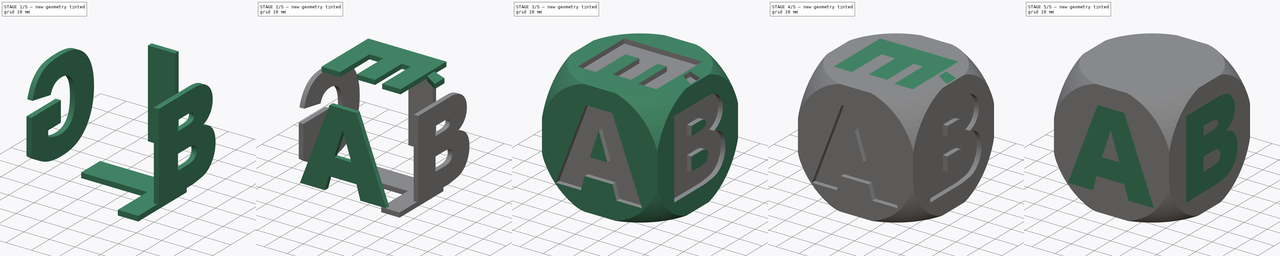
[diagram: build sequence overview — one tinted view per stage of 5, left to right]
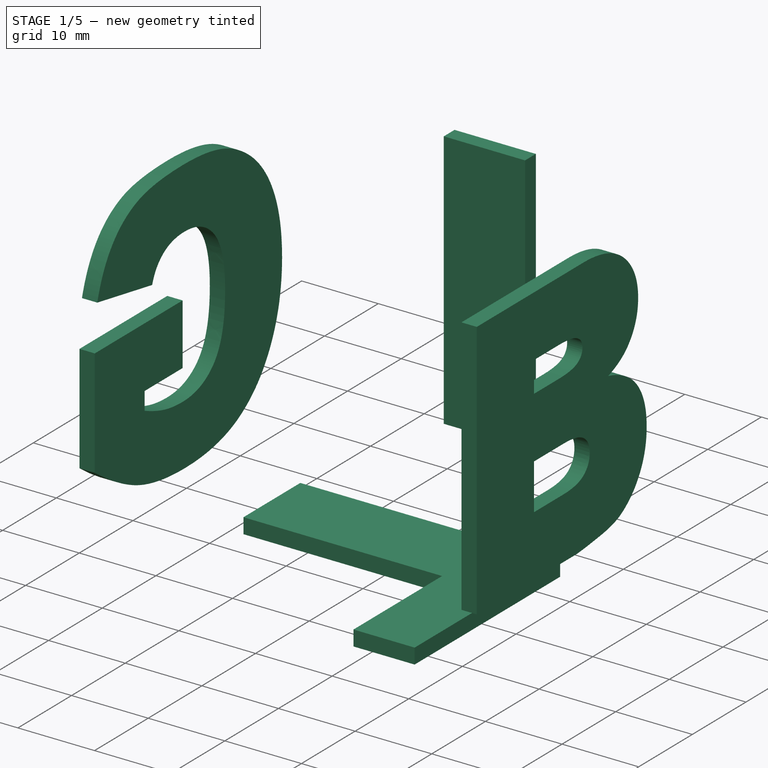
[diagram: stage 1 of 5 — iso view after this stage's code; geometry added in this stage tinted green]
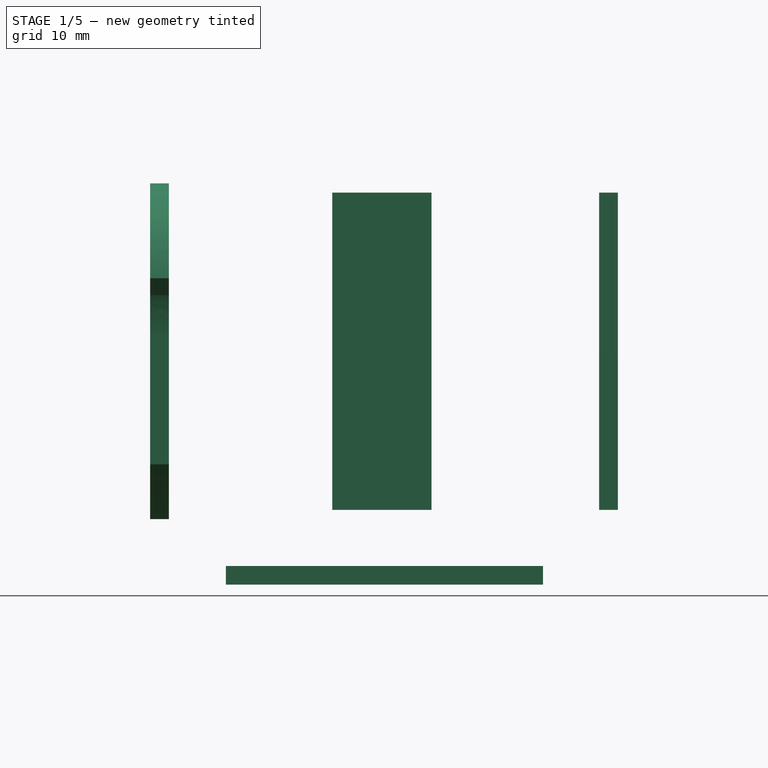
[diagram: stage 1 of 5 — front view after this stage's code; geometry added in this stage tinted green]
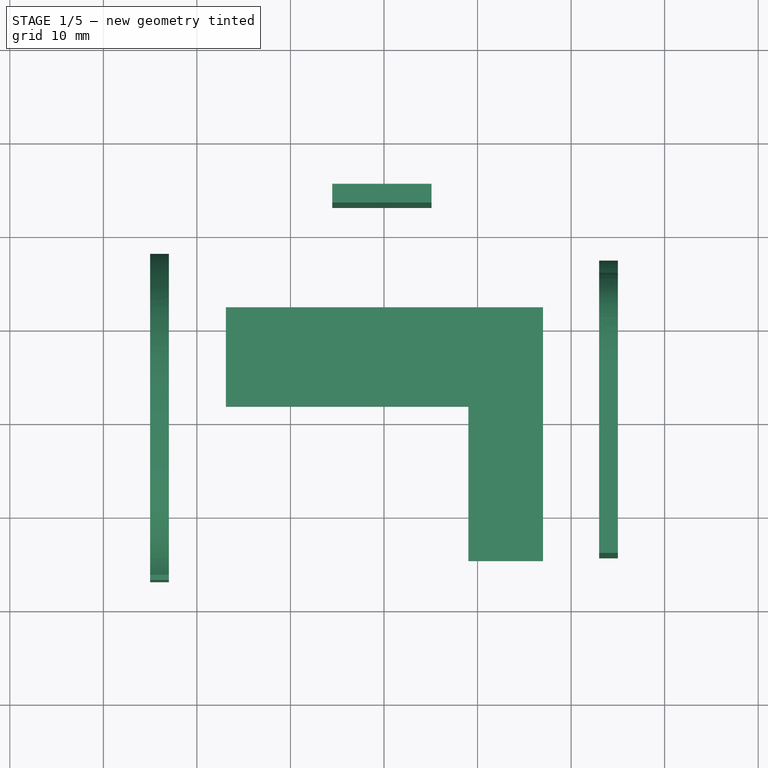
[diagram: stage 1 of 5 — top view after this stage's code; geometry added in this stage tinted green]
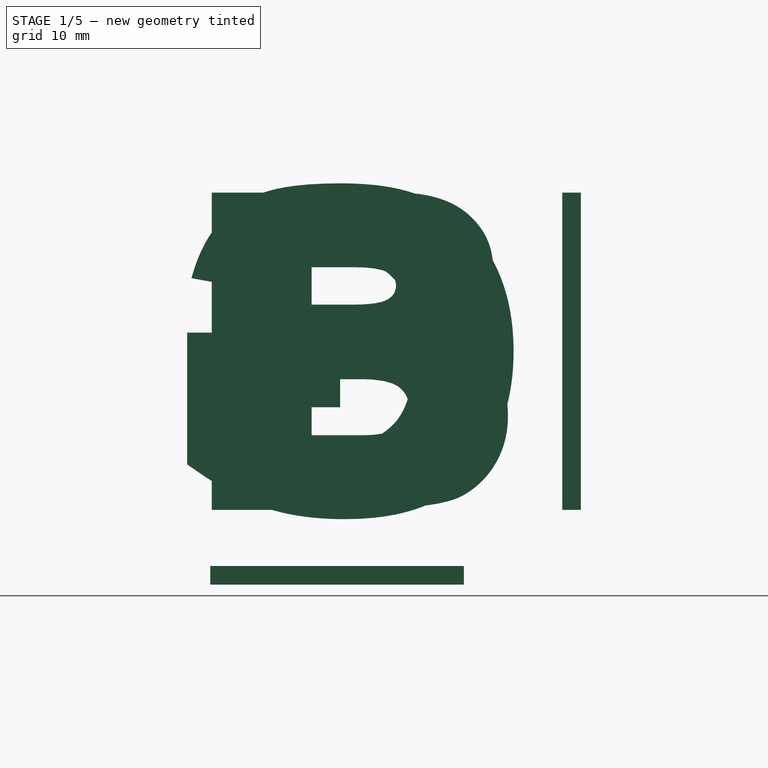
[diagram: stage 1 of 5 — right view after this stage's code; geometry added in this stage tinted green]
FCSTD DOCUMENT  (FreeCAD 0.17R13541 (Git))
Label: AbyCube
License: All rights reserved
LicenseURL: http://en.wikipedia.org/wiki/All_rights_reserved
objects: Part::Extrusion×12, Part::Part2DObjectPython×10, Sketcher::SketchObject×2, Part::MultiFuse×2, Part::Box×1, Part::Sphere×1, Part::MultiCommon×1, App::Part×1, Part::Cut×1
note: 30 computed .brp shape members not serialized (recipe doc carries the construction recipe); baked Part::Feature solids carry a one-line shape summary decoded from their .brp

FEATURE [Part::Part2DObjectPython] ShapeString001  label="B"  # Draft 2D object (typed FeaturePython)
  FontFile = <path>
  Placement = pos=(0,-18,-17) rot=(0.57735,0.57735,0.57735;2.0944rad)
  Size = 45
  String = B
  Tracking = 0
FEATURE [Part::Extrusion] Extrude001  label="_B"
  Base = -> ShapeString001
  Dir = (1,0,0)
  DirMode = 2
  FaceMakerClass = Part::FaceMakerBullseye
  LengthFwd = 2
  LengthRev = 0
  Placement = pos=(23,0,0) rot=(0,0,1;0rad)
  Solid = false
  Symmetric = false
FEATURE [Part::Part2DObjectPython] ShapeString002  label="I"  # Draft 2D object (typed FeaturePython)
  FontFile = <path>
  Placement = pos=(9,0,-17) rot=(0,0.707107,0.707107;3.14159rad)
  Size = 45
  String = I
  Tracking = 0
FEATURE [Part::Extrusion] Extrude002  label="_I"
  Base = -> ShapeString002
  Dir = (0,1,0)
  DirMode = 2
  FaceMakerClass = Part::FaceMakerBullseye
  LengthFwd = 2
  LengthRev = 0
  Placement = pos=(0,23,0) rot=(0,0,1;0rad)
  Solid = false
  Symmetric = false
FEATURE [Part::Part2DObjectPython] ShapeString004  label="L"  # Draft 2D object (typed FeaturePython)
  FontFile = <path>
  Placement = pos=(17,16,0) rot=(0.707107,-0.707107,0;3.14159rad)
  Size = 45
  String = L
  Tracking = 0
FEATURE [Part::Extrusion] Extrude005  label="_L"
  Base = -> ShapeString004
  Dir = (0,0,-1)
  DirMode = 2
  FaceMakerClass = Part::FaceMakerBullseye
  LengthFwd = 2
  LengthRev = 0
  Placement = pos=(0,0,-23) rot=(0,0,1;0rad)
  Solid = false
  Symmetric = false
FEATURE [Part::Part2DObjectPython] ShapeString003  label="G"  # Draft 2D object (typed FeaturePython)
  FontFile = <path>
  Placement = pos=(0,20,-17) rot=(0.57735,-0.57735,-0.57735;2.0944rad)
  Size = 45
  String = G
  Tracking = 0
FEATURE [Part::Extrusion] Extrude003  label="_G"
  Base = -> ShapeString003
  Dir = (-1,0,0)
  DirMode = 2
  FaceMakerClass = Part::FaceMakerBullseye
  LengthFwd = 2
  LengthRev = 0
  Placement = pos=(-23,0,0) rot=(0,0,1;0rad)
  Solid = false
  Symmetric = false
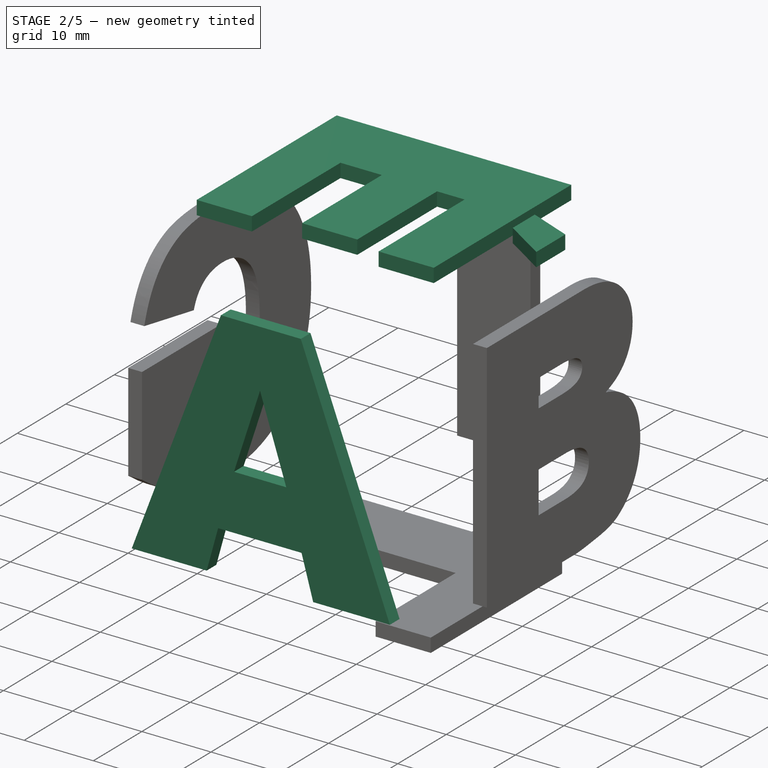
[diagram: stage 2 of 5 — iso view after this stage's code; geometry added in this stage tinted green]
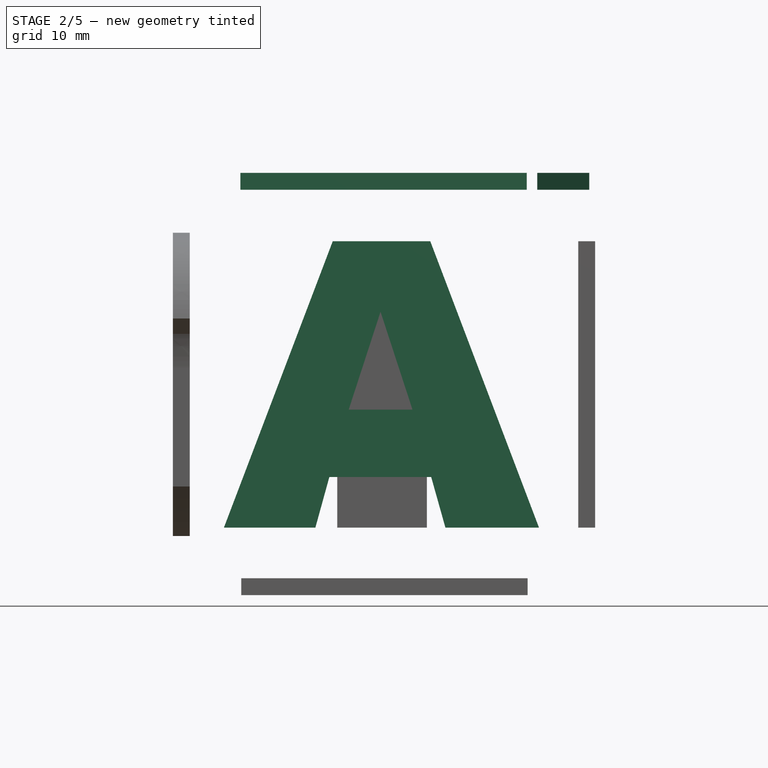
[diagram: stage 2 of 5 — front view after this stage's code; geometry added in this stage tinted green]
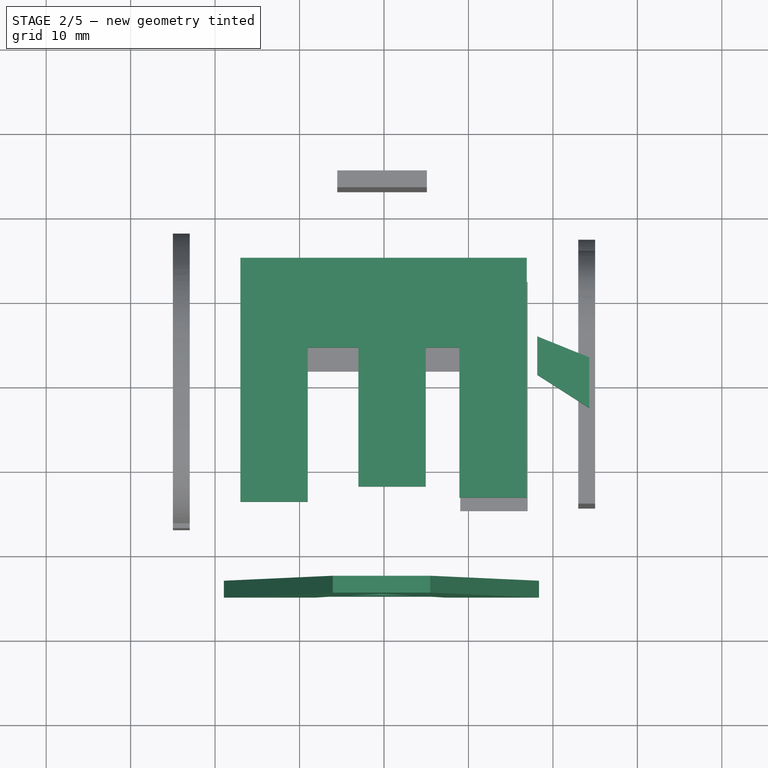
[diagram: stage 2 of 5 — top view after this stage's code; geometry added in this stage tinted green]
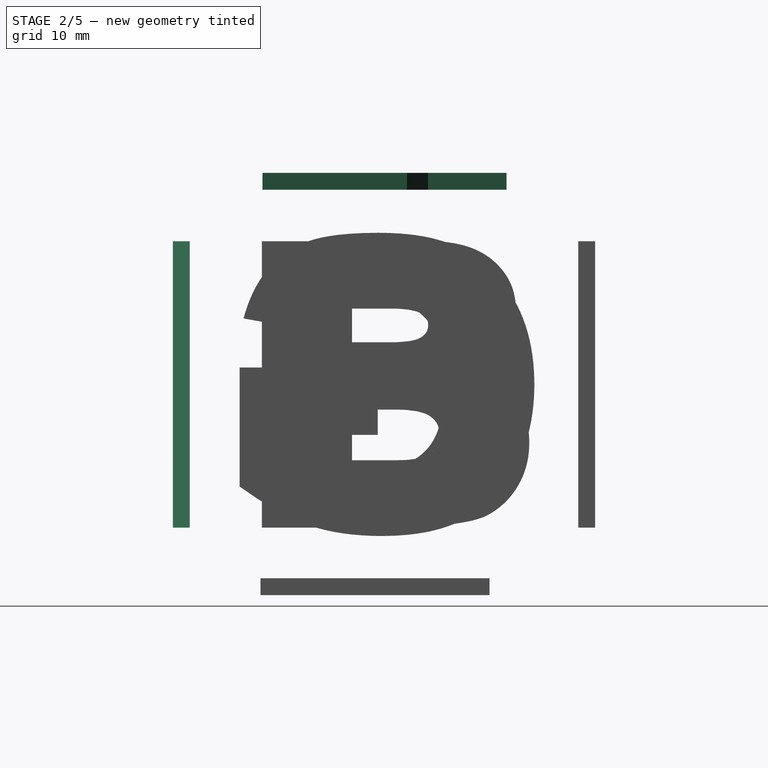
[diagram: stage 2 of 5 — right view after this stage's code; geometry added in this stage tinted green]
FEATURE [Part::Part2DObjectPython] ShapeString  label="A"  # Draft 2D object (typed FeaturePython)
  FontFile = <path>
  Placement = pos=(-19,0,-17) rot=(1,0,0;1.5708rad)
  Size = 45
  String = A
  Tracking = 0
FEATURE [Part::Extrusion] Extrude  label="_A"
  Base = -> ShapeString
  Dir = (0,-1,0)
  DirMode = 2
  FaceMakerClass = Part::FaceMakerBullseye
  LengthFwd = 2
  LengthRev = 0
  Placement = pos=(0,-23,0) rot=(0,0,1;0rad)
  Solid = false
  Symmetric = false
FEATURE [Sketcher::SketchObject] Sketch  label="É"
  Placement = pos=(0,-2,0) rot=(0.707107,-0.707107,0;3.14159rad)
  sketch-geometry (16):
    g0: LineSegment StartX=-16.5097 StartY=-16.9058 StartZ=0 EndX=11.8646 EndY=-16.9058 EndZ=0
    g1: LineSegment StartX=-16.5097 StartY=17 StartZ=0 EndX=-16.5097 EndY=-16.9058 EndZ=0
    g2: LineSegment StartX=12.3788 StartY=17 StartZ=0 EndX=-16.5097 EndY=17 EndZ=0
    g3: LineSegment StartX=12.3788 StartY=9.02216 StartZ=0 EndX=12.3788 EndY=17 EndZ=0
    g4: LineSegment StartX=-5.89855 StartY=9.02216 StartZ=0 EndX=12.3788 EndY=9.02216 EndZ=0
    g5: LineSegment StartX=-5.89855 StartY=3.03878 StartZ=0 EndX=-5.89855 EndY=9.02216 EndZ=0
    g6: LineSegment StartX=10.5713 StartY=3.03878 StartZ=0 EndX=-5.89855 EndY=3.03878 EndZ=0
    g7: LineSegment StartX=10.5713 StartY=-4.93906 StartZ=0 EndX=10.5713 EndY=3.03878 EndZ=0
    g8: LineSegment StartX=-5.89855 StartY=-4.93906 StartZ=0 EndX=10.5713 EndY=-4.93906 EndZ=0
    g9: LineSegment StartX=-5.89855 StartY=-8.92798 StartZ=0 EndX=-5.89855 EndY=-4.93906 EndZ=0
    g10: LineSegment StartX=11.8646 StartY=-8.92798 StartZ=0 EndX=-5.89855 EndY=-8.92798 EndZ=0
    g11: LineSegment StartX=11.8646 StartY=-16.9058 StartZ=0 EndX=11.8646 EndY=-8.92798 EndZ=0
    g12: LineSegment StartX=-4.71913 StartY=-24.3031 StartZ=0 EndX=1.26699 EndY=-24.3031 EndZ=0
    g13: LineSegment StartX=-7.20741 StartY=-18.1482 StartZ=0 EndX=-4.71913 EndY=-24.3031 EndZ=0
    g14: LineSegment StartX=-2.65755 StartY=-18.1482 StartZ=0 EndX=-7.20741 EndY=-18.1482 EndZ=0
    g15: LineSegment StartX=1.26699 StartY=-24.3031 StartZ=0 EndX=-2.65755 EndY=-18.1482 EndZ=0
  constraints (30):
    c: Horizontal(g0)
    c: Coincident(g0,g1)
    c: Vertical(g1)
    c: Coincident(g1,g2)
    c: Horizontal(g2)
    c: Coincident(g2,g3)
    c: Vertical(g3)
    c: Coincident(g3,g4)
    c: Horizontal(g4)
    c: Coincident(g4,g5)
    c: Vertical(g5)
    c: Coincident(g5,g6)
    c: Horizontal(g6)
    c: Coincident(g6,g7)
    c: Vertical(g7)
    c: Coincident(g7,g8)
    c: Horizontal(g8)
    c: Coincident(g8,g9)
    c: Vertical(g9)
    c: Coincident(g9,g10)
    c: Horizontal(g10)
    c: Coincident(g10,g11)
    c: Vertical(g11)
    c: Coincident(g11,g0)
    c: Horizontal(g12)
    c: Coincident(g12,g13)
    c: Coincident(g13,g14)
    c: Horizontal(g14)
    c: Coincident(g14,g15)
    c: Coincident(g15,g12)
FEATURE [Part::Extrusion] Extrude004  label="_É"
  Base = -> Sketch
  Dir = (0,0,-1)
  DirMode = 2
  FaceMakerClass = Part::FaceMakerBullseye
  LengthFwd = 2
  LengthRev = 0
  Placement = pos=(0,0,25) rot=(0,0,1;0rad)
  Solid = true
  Symmetric = false
FEATURE [App::Part] Part
  Group = -> [Extrude001,Box,Common,Sphere,Extrude002,ShapeString,Sketch,ShapeString003,Extrude,ShapeString001,Extrude005,Extrude003,ShapeString002,ShapeString004,Extrude004]
  License = CC BY 3.0
  LicenseURL = http://creativecommons.org/licenses/by/3.0/
  Origin = -> Origin
FEATURE [Part::MultiFuse] Fusion  label="Letters1"
  Shapes = -> [Extrude001,Extrude002,Extrude,Extrude005,Extrude003,Extrude004]
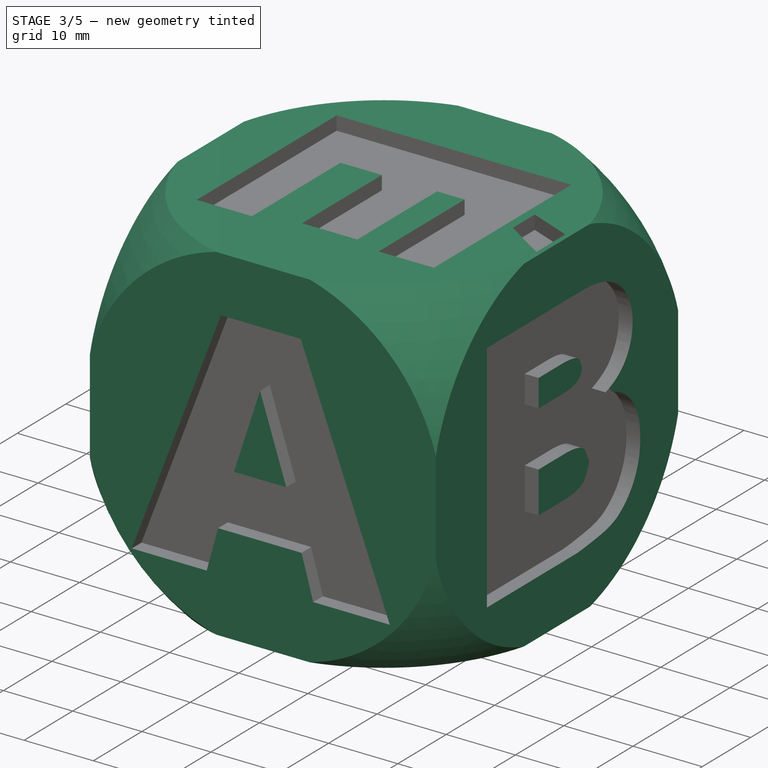
[diagram: stage 3 of 5 — iso view after this stage's code; geometry added in this stage tinted green]
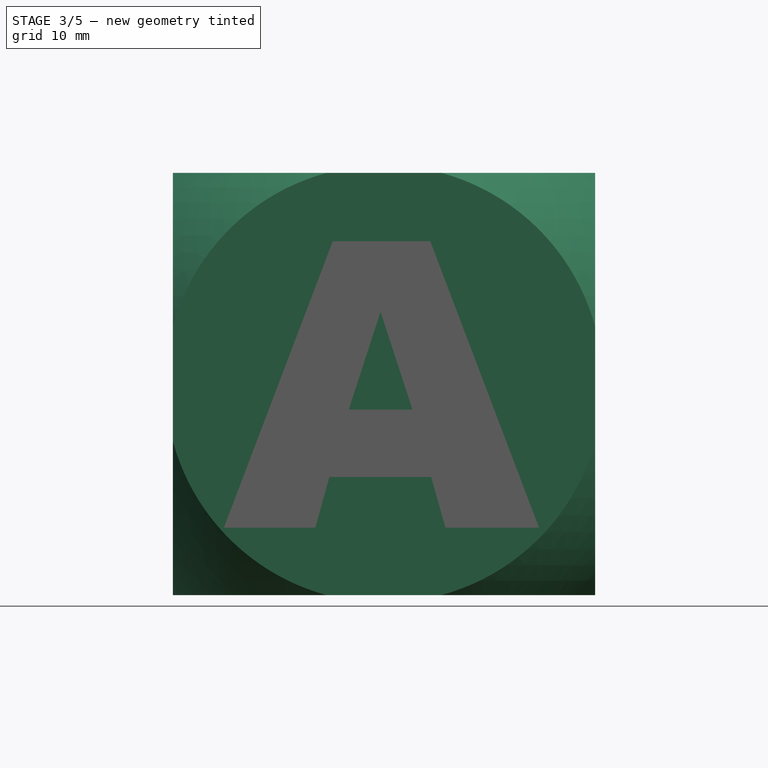
[diagram: stage 3 of 5 — front view after this stage's code; geometry added in this stage tinted green]
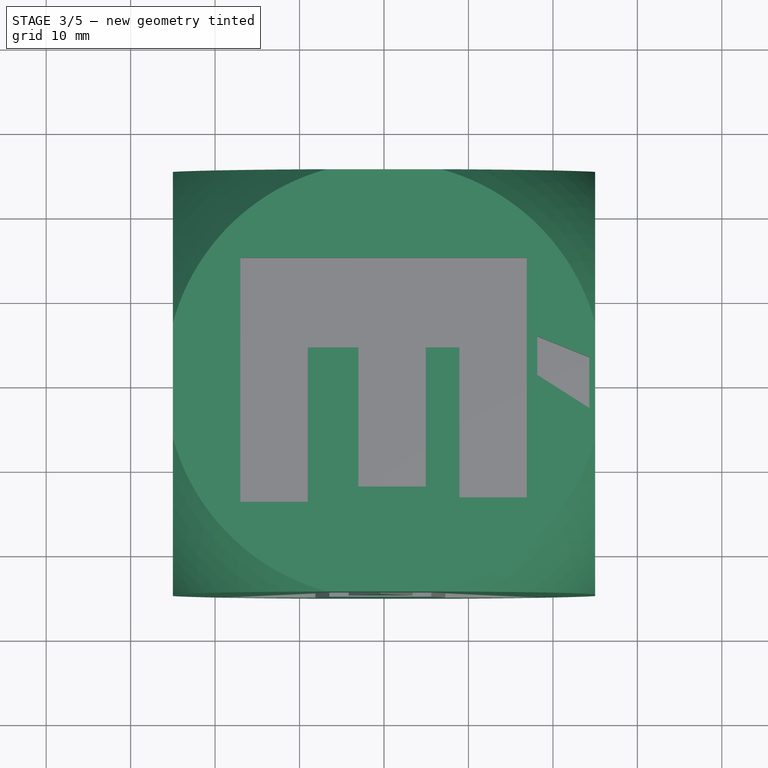
[diagram: stage 3 of 5 — top view after this stage's code; geometry added in this stage tinted green]
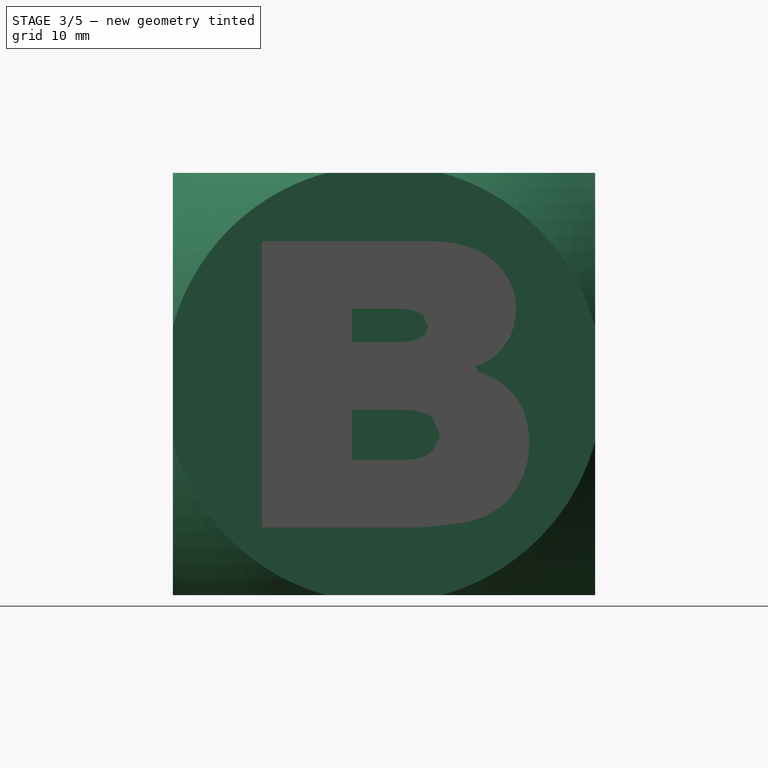
[diagram: stage 3 of 5 — right view after this stage's code; geometry added in this stage tinted green]
FEATURE [Part::Box] Box  label="Cube"
  AttacherType = Attacher::AttachEngine3D
  Height = 50
  Length = 50
  Placement = pos=(-25,-25,-25) rot=(0,0,1;0rad)
  Width = 50
  expr: Placement.Base.z = -Height / 2
  expr: Placement.Base.y = -Width / 2
  expr: Placement.Base.x = -Length / 2
FEATURE [Part::Sphere] Sphere
  Angle1 = -90
  Angle2 = 90
  Angle3 = 360
  AttacherType = Attacher::AttachEngine3D
  Radius = 36
FEATURE [Part::MultiCommon] Common  label="Base"
  Shapes = -> [Box,Sphere]
FEATURE [Part::Cut] Cut
  Base = -> Common
  Tool = -> Fusion
note: 10 file-system paths scrubbed to <path> (originals preserved in the JSON sidecar)
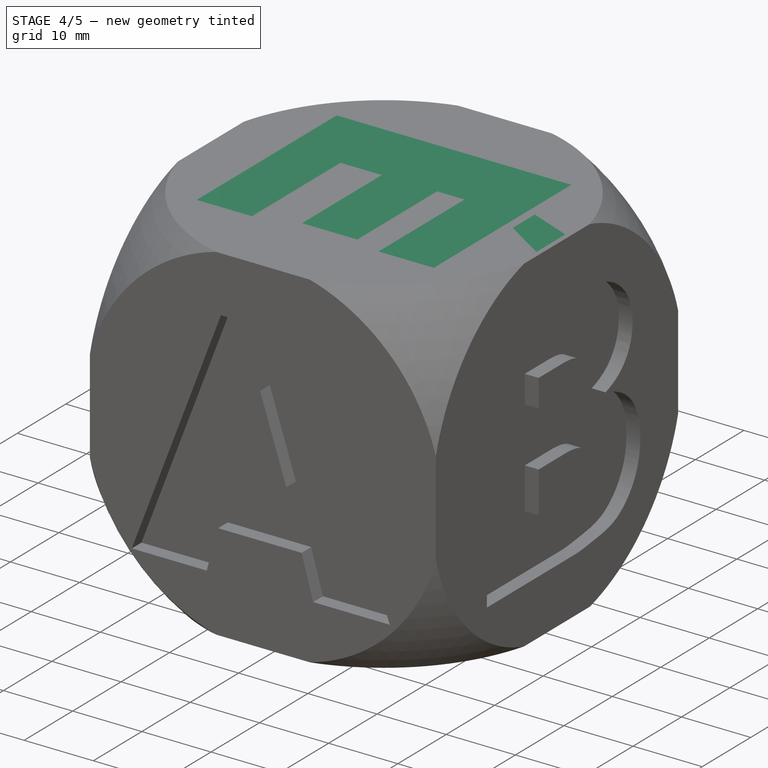
[diagram: stage 4 of 5 — iso view after this stage's code; geometry added in this stage tinted green]
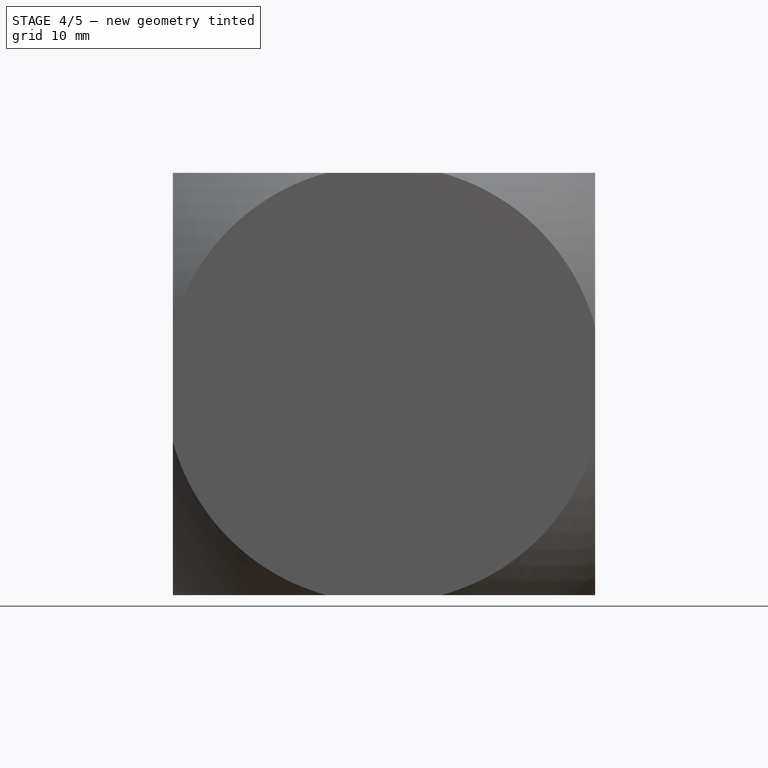
[diagram: stage 4 of 5 — front view after this stage's code; geometry added in this stage tinted green]
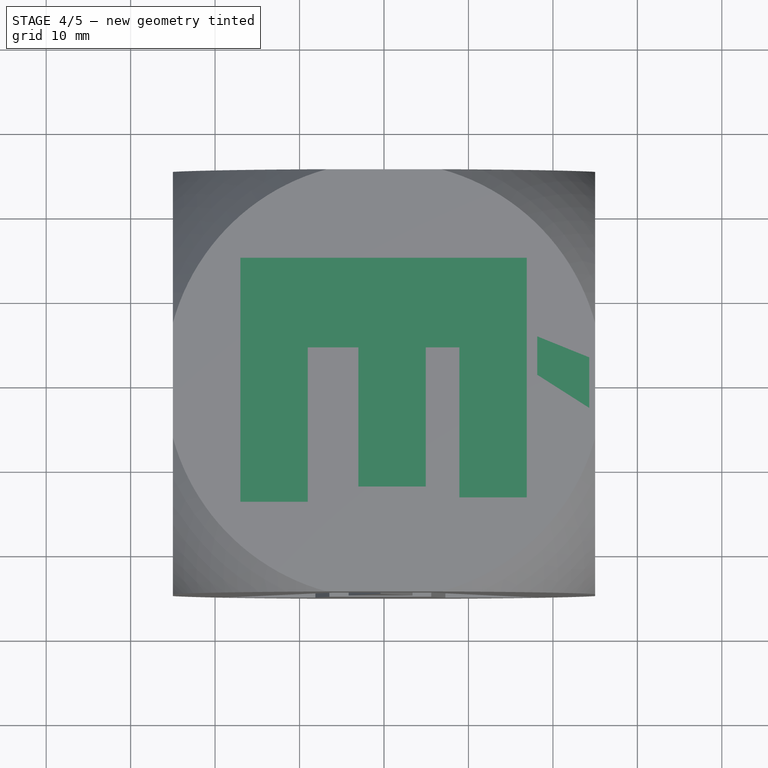
[diagram: stage 4 of 5 — top view after this stage's code; geometry added in this stage tinted green]
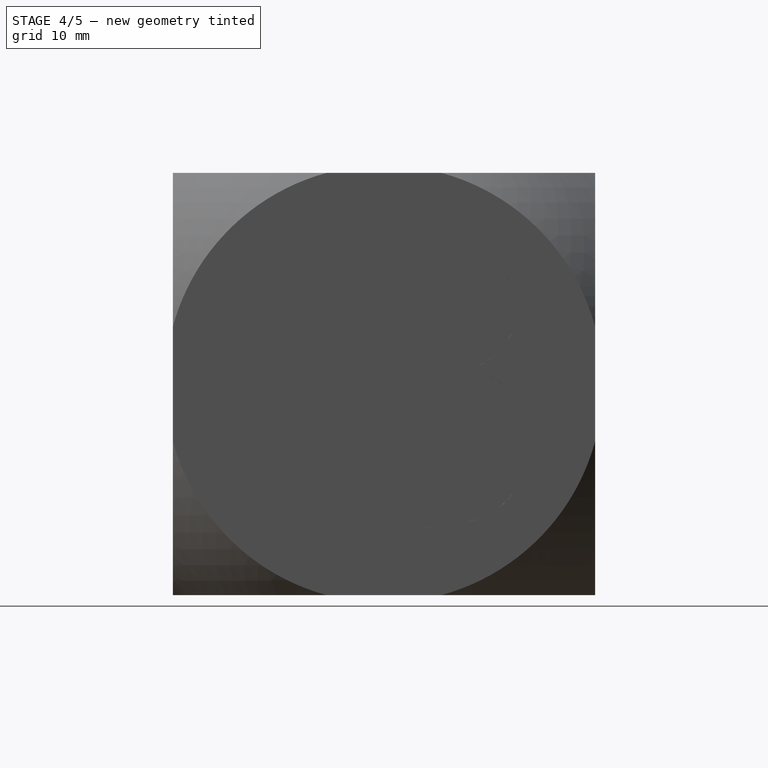
[diagram: stage 4 of 5 — right view after this stage's code; geometry added in this stage tinted green]
FEATURE [Part::Extrusion] Extrude009  label="_G001"
  Base = -> ShapeString008
  Dir = (-1,0,0)
  DirMode = 2
  FaceMakerClass = Part::FaceMakerBullseye
  LengthFwd = 2
  LengthRev = 0
  Placement = pos=(-23,0,0) rot=(0,0,1;0rad)
  Solid = false
  Symmetric = false
FEATURE [Part::Extrusion] Extrude010  label="_É001"
  Base = -> Sketch001
  Dir = (0,0,-1)
  DirMode = 2
  FaceMakerClass = Part::FaceMakerBullseye
  LengthFwd = 2
  LengthRev = 0
  Placement = pos=(0,0,25) rot=(0,0,1;0rad)
  Solid = true
  Symmetric = false
FEATURE [Part::Extrusion] Extrude011  label="_L001"
  Base = -> ShapeString009
  Dir = (0,0,-1)
  DirMode = 2
  FaceMakerClass = Part::FaceMakerBullseye
  LengthFwd = 2
  LengthRev = 0
  Placement = pos=(0,0,-23) rot=(0,0,1;0rad)
  Solid = false
  Symmetric = false
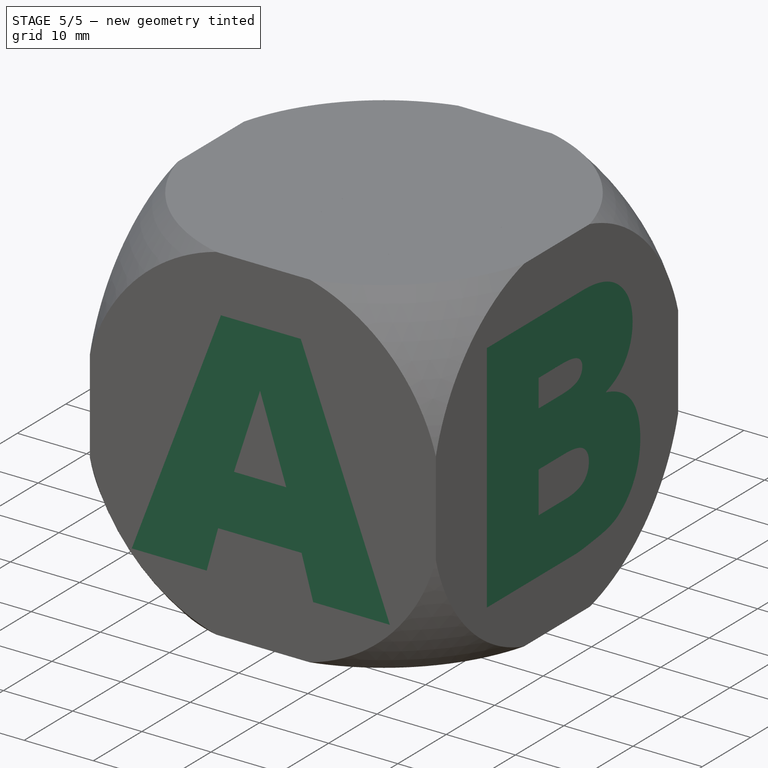
[diagram: stage 5 of 5 — iso view after this stage's code; geometry added in this stage tinted green]
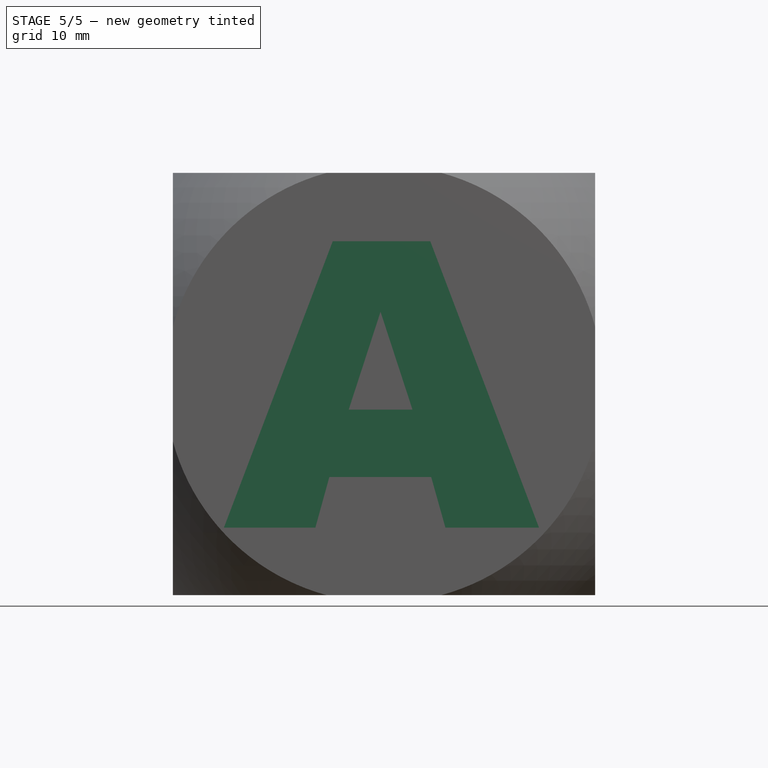
[diagram: stage 5 of 5 — front view after this stage's code; geometry added in this stage tinted green]
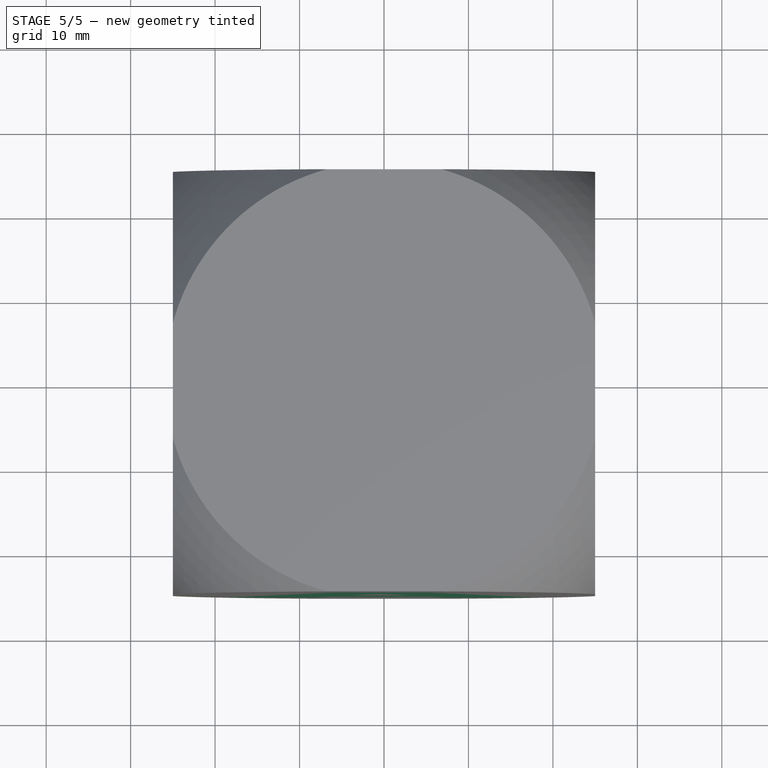
[diagram: stage 5 of 5 — top view after this stage's code; geometry added in this stage tinted green]
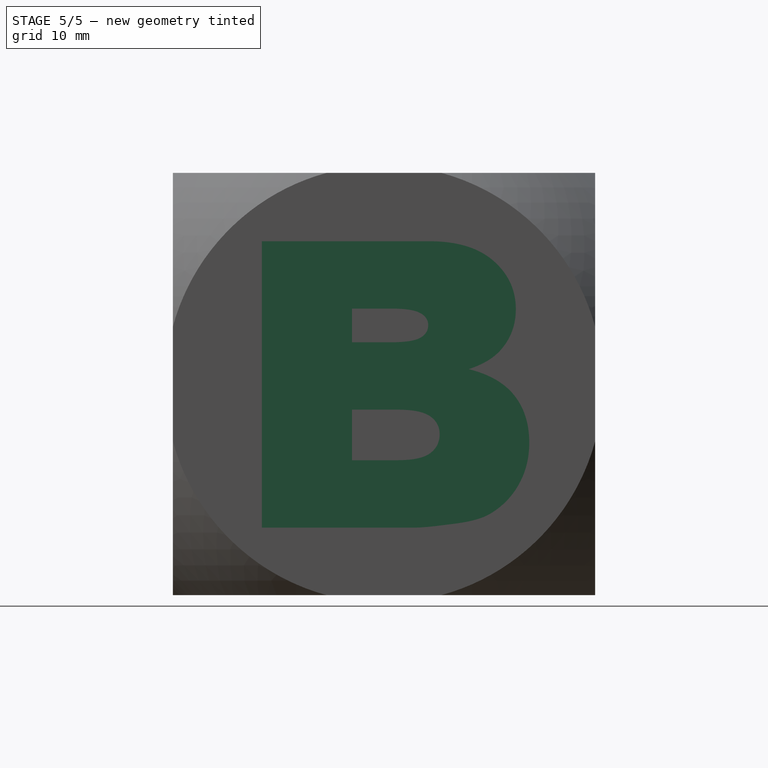
[diagram: stage 5 of 5 — right view after this stage's code; geometry added in this stage tinted green]
FEATURE [Part::Part2DObjectPython] ShapeString005  label="A001"  # Draft 2D object (typed FeaturePython)
  FontFile = <path>
  Placement = pos=(-19,0,-17) rot=(1,0,0;1.5708rad)
  Size = 45
  String = A
  Tracking = 0
FEATURE [Part::Extrusion] Extrude006  label="_A001"
  Base = -> ShapeString005
  Dir = (0,-1,0)
  DirMode = 2
  FaceMakerClass = Part::FaceMakerBullseye
  LengthFwd = 2
  LengthRev = 0
  Placement = pos=(0,-23,0) rot=(0,0,1;0rad)
  Solid = false
  Symmetric = false
FEATURE [Part::Part2DObjectPython] ShapeString006  label="B001"  # Draft 2D object (typed FeaturePython)
  FontFile = <path>
  Placement = pos=(0,-18,-17) rot=(0.57735,0.57735,0.57735;2.0944rad)
  Size = 45
  String = B
  Tracking = 0
FEATURE [Part::Extrusion] Extrude007  label="_B001"
  Base = -> ShapeString006
  Dir = (1,0,0)
  DirMode = 2
  FaceMakerClass = Part::FaceMakerBullseye
  LengthFwd = 2
  LengthRev = 0
  Placement = pos=(23,0,0) rot=(0,0,1;0rad)
  Solid = false
  Symmetric = false
FEATURE [Part::Part2DObjectPython] ShapeString007  label="I001"  # Draft 2D object (typed FeaturePython)
  FontFile = <path>
  Placement = pos=(9,0,-17) rot=(0,0.707107,0.707107;3.14159rad)
  Size = 45
  String = I
  Tracking = 0
FEATURE [Part::Part2DObjectPython] ShapeString008  label="G001"  # Draft 2D object (typed FeaturePython)
  FontFile = <path>
  Placement = pos=(0,20,-17) rot=(0.57735,-0.57735,-0.57735;2.0944rad)
  Size = 45
  String = G
  Tracking = 0
FEATURE [Sketcher::SketchObject] Sketch001  label="É001"
  Placement = pos=(0,-2,0) rot=(0.707107,-0.707107,0;3.14159rad)
  sketch-geometry (16):
    g0: LineSegment StartX=-16.5097 StartY=-16.9058 StartZ=0 EndX=11.8646 EndY=-16.9058 EndZ=0
    g1: LineSegment StartX=-16.5097 StartY=17 StartZ=0 EndX=-16.5097 EndY=-16.9058 EndZ=0
    g2: LineSegment StartX=12.3788 StartY=17 StartZ=0 EndX=-16.5097 EndY=17 EndZ=0
    g3: LineSegment StartX=12.3788 StartY=9.02216 StartZ=0 EndX=12.3788 EndY=17 EndZ=0
    g4: LineSegment StartX=-5.89855 StartY=9.02216 StartZ=0 EndX=12.3788 EndY=9.02216 EndZ=0
    g5: LineSegment StartX=-5.89855 StartY=3.03878 StartZ=0 EndX=-5.89855 EndY=9.02216 EndZ=0
    g6: LineSegment StartX=10.5713 StartY=3.03878 StartZ=0 EndX=-5.89855 EndY=3.03878 EndZ=0
    g7: LineSegment StartX=10.5713 StartY=-4.93906 StartZ=0 EndX=10.5713 EndY=3.03878 EndZ=0
    g8: LineSegment StartX=-5.89855 StartY=-4.93906 StartZ=0 EndX=10.5713 EndY=-4.93906 EndZ=0
    g9: LineSegment StartX=-5.89855 StartY=-8.92798 StartZ=0 EndX=-5.89855 EndY=-4.93906 EndZ=0
    g10: LineSegment StartX=11.8646 StartY=-8.92798 StartZ=0 EndX=-5.89855 EndY=-8.92798 EndZ=0
    g11: LineSegment StartX=11.8646 StartY=-16.9058 StartZ=0 EndX=11.8646 EndY=-8.92798 EndZ=0
    g12: LineSegment StartX=-4.71913 StartY=-24.3031 StartZ=0 EndX=1.26699 EndY=-24.3031 EndZ=0
    g13: LineSegment StartX=-7.20741 StartY=-18.1482 StartZ=0 EndX=-4.71913 EndY=-24.3031 EndZ=0
    g14: LineSegment StartX=-2.65755 StartY=-18.1482 StartZ=0 EndX=-7.20741 EndY=-18.1482 EndZ=0
    g15: LineSegment StartX=1.26699 StartY=-24.3031 StartZ=0 EndX=-2.65755 EndY=-18.1482 EndZ=0
  constraints (30):
    c: Horizontal(g0)
    c: Coincident(g0,g1)
    c: Vertical(g1)
    c: Coincident(g1,g2)
    c: Horizontal(g2)
    c: Coincident(g2,g3)
    c: Vertical(g3)
    c: Coincident(g3,g4)
    c: Horizontal(g4)
    c: Coincident(g4,g5)
    c: Vertical(g5)
    c: Coincident(g5,g6)
    c: Horizontal(g6)
    c: Coincident(g6,g7)
    c: Vertical(g7)
    c: Coincident(g7,g8)
    c: Horizontal(g8)
    c: Coincident(g8,g9)
    c: Vertical(g9)
    c: Coincident(g9,g10)
    c: Horizontal(g10)
    c: Coincident(g10,g11)
    c: Vertical(g11)
    c: Coincident(g11,g0)
    c: Horizontal(g12)
    c: Coincident(g12,g13)
    c: Coincident(g13,g14)
    c: Horizontal(g14)
    c: Coincident(g14,g15)
    c: Coincident(g15,g12)
FEATURE [Part::Part2DObjectPython] ShapeString009  label="L001"  # Draft 2D object (typed FeaturePython)
  FontFile = <path>
  Placement = pos=(17,16,0) rot=(0.707107,-0.707107,0;3.14159rad)
  Size = 45
  String = L
  Tracking = 0
FEATURE [Part::Extrusion] Extrude008  label="_I001"
  Base = -> ShapeString007
  Dir = (0,1,0)
  DirMode = 2
  FaceMakerClass = Part::FaceMakerBullseye
  LengthFwd = 2
  LengthRev = 0
  Placement = pos=(0,23,0) rot=(0,0,1;0rad)
  Solid = false
  Symmetric = false
FEATURE [Part::MultiFuse] Fusion001  label="Letters2"
  Shapes = -> [Extrude007,Extrude008,Extrude006,Extrude011,Extrude009,Extrude010]
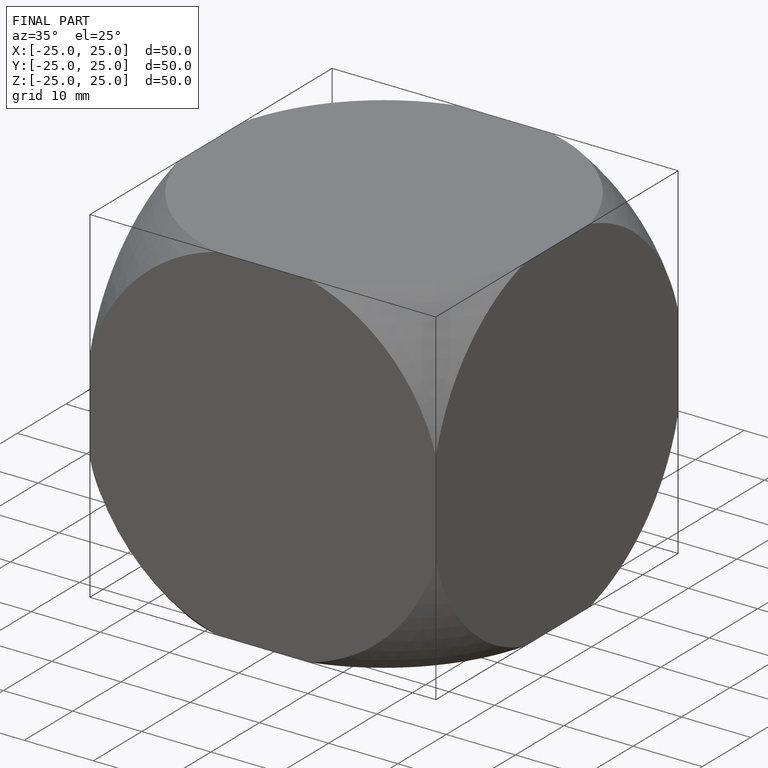
[diagram: finished part — iso view with bounding-box wireframe]
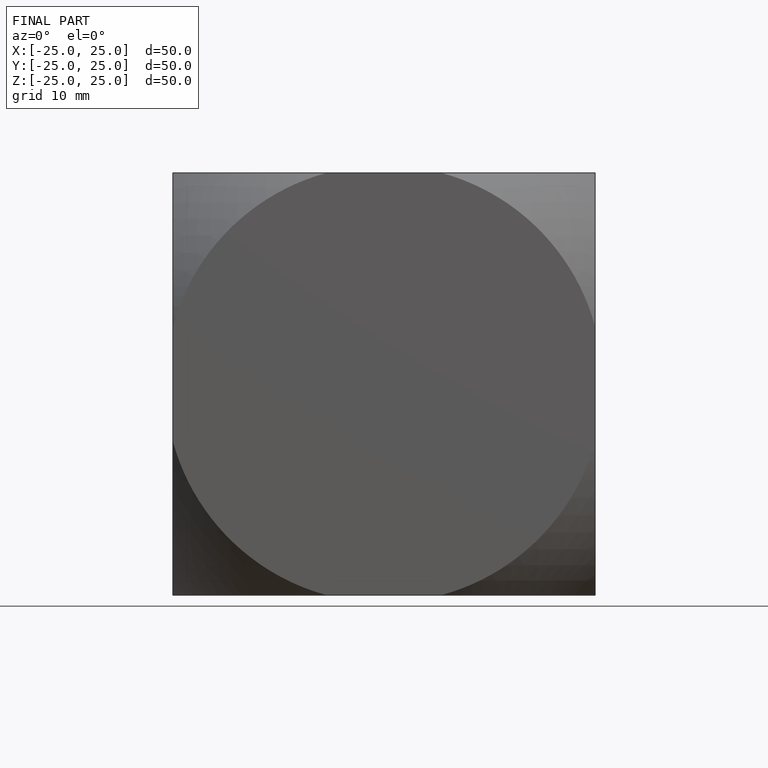
[diagram: finished part — front view with bounding-box wireframe]
